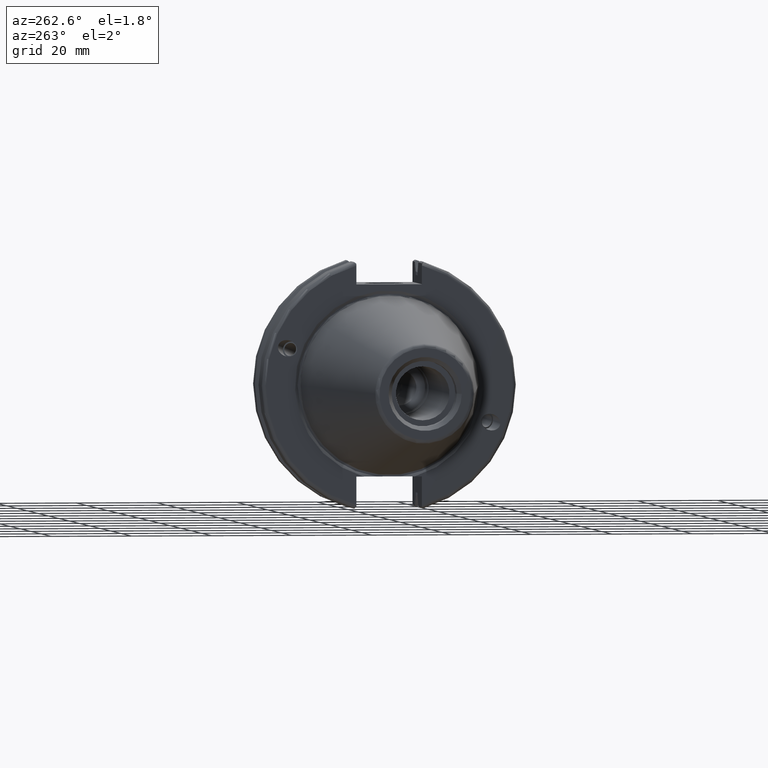
[diagram: clean part render]
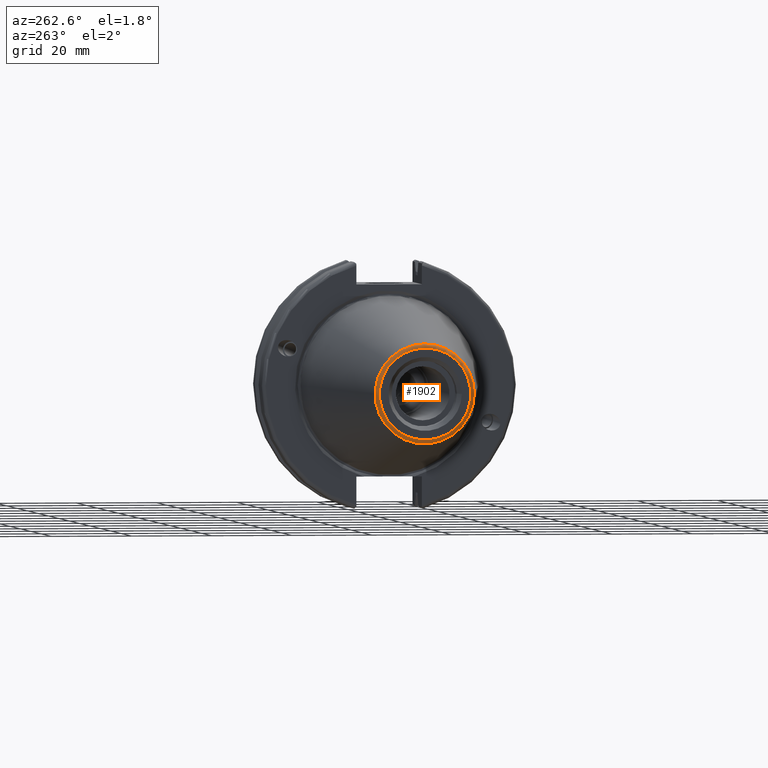
[diagram: same view with one face highlighted and labeled with its STEP entity id]
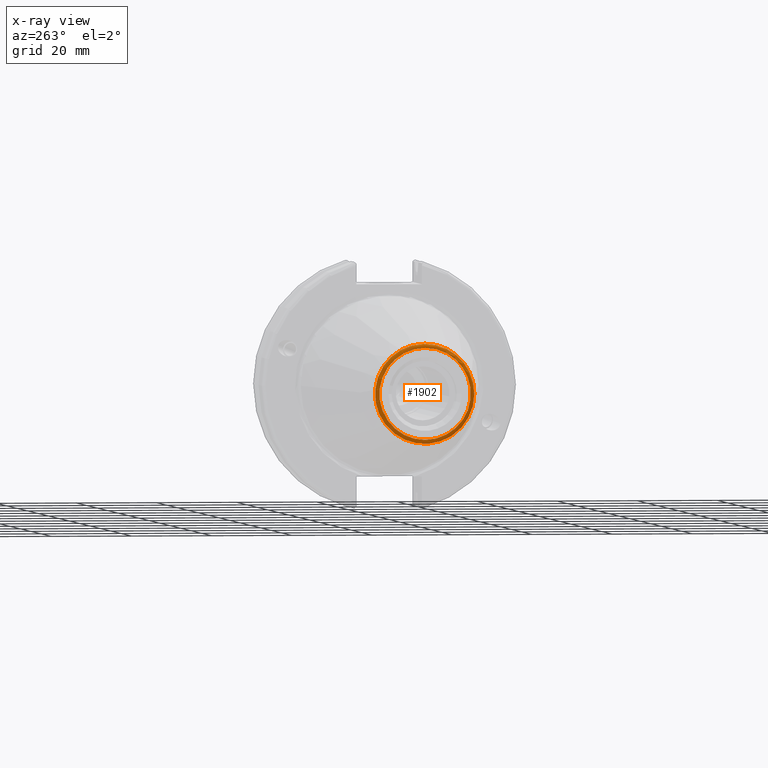
[diagram: x-ray of the same camera — body ghosted, the highlighted face saturated]
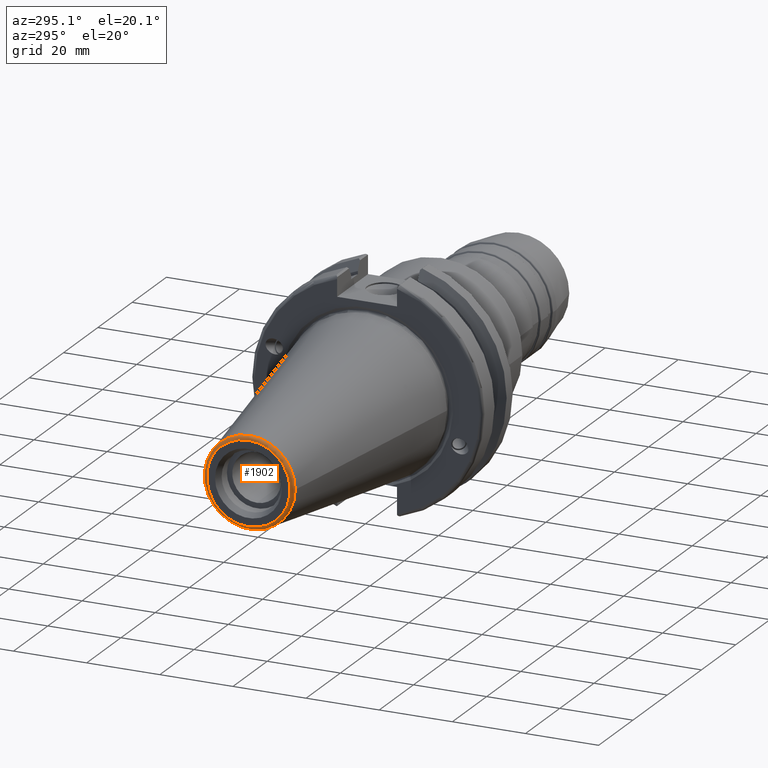
[diagram: same view with one face highlighted and labeled with its STEP entity id]
A machine part, auxiliary view. The second image highlights one B-rep face of the part: STEP entity #1902.
The next image is the same camera in x-ray: the body ghosted, the highlighted face saturated — about 0% of this face is hidden behind the body in this view.
A second angle (auxiliary view) of the same face is appended — the face is thin or edge-on in the first view.
In plain terms, the highlighted toroidal blend (fillet) surface has major radius 11.4071 mm and minor (blend) radius 1 mm.
Its self-contained STEP definition (entity closure, byte-faithful):
#448=FACE_OUTER_BOUND('',#565,.T.);
#565=EDGE_LOOP('',(#1661,#1662,#1663,#1664,#1665));
#707=CIRCLE('',#2157,12.3966635780937);
#708=CIRCLE('',#2158,12.3966635780937);
#709=CIRCLE('',#2159,1.);
#710=CIRCLE('',#2160,11.4071305970304);
#907=VERTEX_POINT('',#3664);
#908=VERTEX_POINT('',#3665);
#909=VERTEX_POINT('',#3668);
#1177=EDGE_CURVE('',#907,#908,#707,.T.);
#1178=EDGE_CURVE('',#908,#907,#708,.T.);
#1179=EDGE_CURVE('',#907,#909,#709,.T.);
#1180=EDGE_CURVE('',#909,#909,#710,.T.);
#1661=ORIENTED_EDGE('',*,*,#1177,.T.);
#1662=ORIENTED_EDGE('',*,*,#1178,.T.);
#1663=ORIENTED_EDGE('',*,*,#1179,.T.);
#1664=ORIENTED_EDGE('',*,*,#1180,.T.);
#1665=ORIENTED_EDGE('',*,*,#1179,.F.);
#1825=TOROIDAL_SURFACE('',#2156,11.4071305970304,1.);
#1902=ADVANCED_FACE('',(#448),#1825,.T.);
#2156=AXIS2_PLACEMENT_3D('',#3663,#2692,#2693);
#2157=AXIS2_PLACEMENT_3D('',#3666,#2694,#2695);
#2158=AXIS2_PLACEMENT_3D('',#3667,#2696,#2697);
#2159=AXIS2_PLACEMENT_3D('',#3669,#2698,#2699);
#2160=AXIS2_PLACEMENT_3D('',#3670,#2700,#2701);
#2692=DIRECTION('center_axis',(1.,0.,0.));
#2693=DIRECTION('ref_axis',(0.,0.,-1.));
#2694=DIRECTION('center_axis',(-1.,0.,0.));
#2695=DIRECTION('ref_axis',(0.,-1.,3.06161699786838E-17));
#2696=DIRECTION('center_axis',(-1.,0.,0.));
#2697=DIRECTION('ref_axis',(0.,-1.,3.06161699786838E-17));
#2698=DIRECTION('center_axis',(0.,-1.,-1.22464679914735E-16));
#2699=DIRECTION('ref_axis',(0.,-1.22464679914735E-16,1.));
#2700=DIRECTION('center_axis',(1.,0.,0.));
#2701=DIRECTION('ref_axis',(0.,-1.,1.83697019872103E-16));
#3663=CARTESIAN_POINT('Origin',(-67.25,0.,0.));
#3664=CARTESIAN_POINT('',(-67.3943068930717,-1.5181534371019E-15,12.3966635780937));
#3665=CARTESIAN_POINT('',(-67.3943068930718,-12.3966635780937,-1.5181534371019E-15));
#3666=CARTESIAN_POINT('Origin',(-67.3943068930717,0.,-1.89769179637738E-15));
#3667=CARTESIAN_POINT('Origin',(-67.3943068930717,0.,-1.89769179637738E-15));
#3668=CARTESIAN_POINT('',(-68.25,-1.39697059731091E-15,11.4071305970304));
#3669=CARTESIAN_POINT('Origin',(-67.25,-1.39697059731091E-15,11.4071305970304));
#3670=CARTESIAN_POINT('Origin',(-68.25,0.,0.));